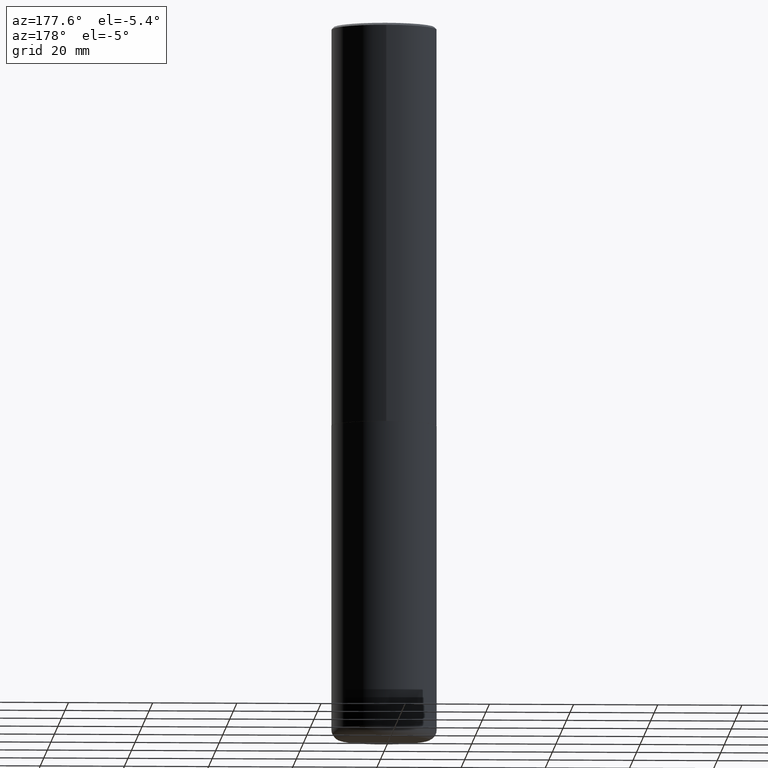
[diagram: clean part render]
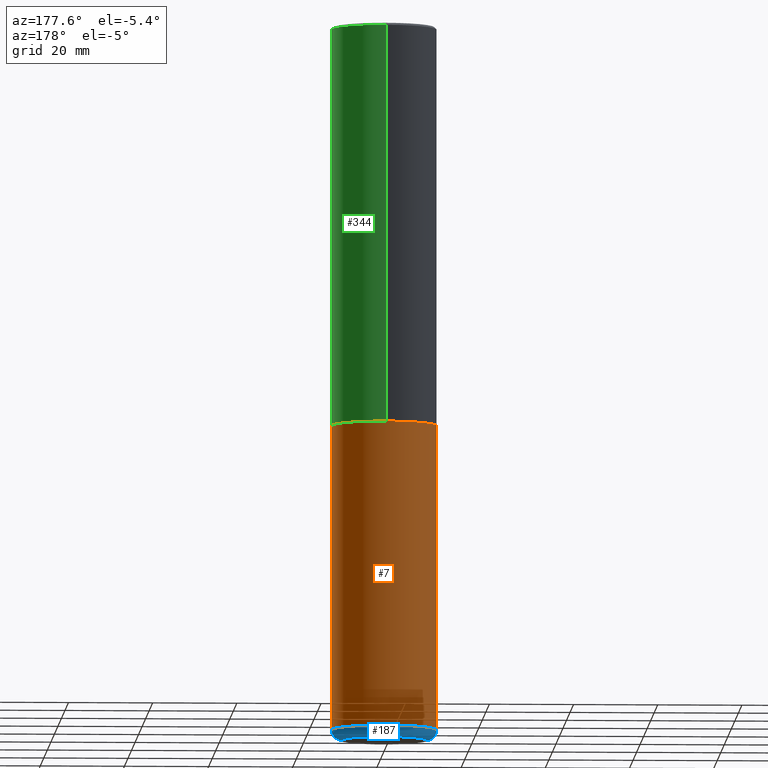
[diagram: same view with three faces highlighted in distinct colors, each labeled with its STEP entity id]
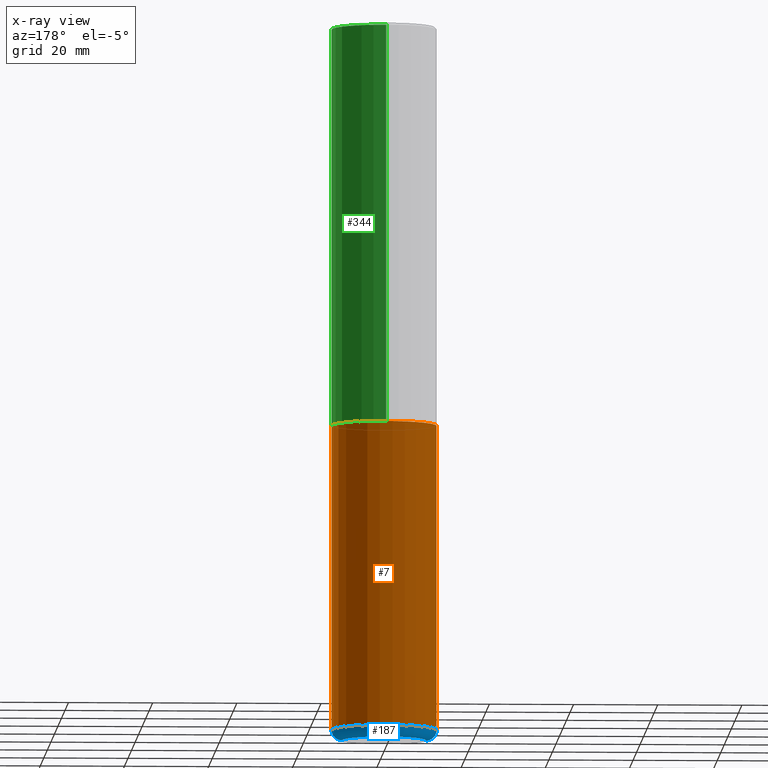
[diagram: x-ray of the same camera — body ghosted, the three highlighted faces saturated]
A machine part, auxiliary view with three faces highlighted in distinct colors.
The next image is the same camera in x-ray (body ghosted, the three faces saturated) — at least one of them is partly hidden behind the body in this view.
Their STEP definitions:

[orange] entity #7 — the highlighted cylindrical surface (partial cylindrical patch) has radius 12.5006 mm, axis along (-0, 0, 1).
#6 = CARTESIAN_POINT ( 'NONE',  ( 9.146297882013029477E-29, -1.305848935540725085E-14, -3.740100000000000424 ) ) ;
#7 = ADVANCED_FACE ( 'NONE', ( #349 ), #293, .T. ) ;
#11 = ORIENTED_EDGE ( 'NONE', *, *, #15, .T. ) ;
#15 = EDGE_CURVE ( 'NONE', #332, #298, #393, .T. ) ;
#29 = AXIS2_PLACEMENT_3D ( 'NONE', #6, #201, #355 ) ;
#40 = AXIS2_PLACEMENT_3D ( 'NONE', #386, #323, #133 ) ;
#42 = EDGE_LOOP ( 'NONE', ( #11, #289, #105, #136 ) ) ;
#47 = EDGE_CURVE ( 'NONE', #134, #275, #218, .T. ) ;
#92 = EDGE_CURVE ( 'NONE', #298, #275, #391, .T. ) ;
#105 = ORIENTED_EDGE ( 'NONE', *, *, #47, .F. ) ;
#115 = CARTESIAN_POINT ( 'NONE',  ( -0.4921500000000002539, -1.952763761495778959E-14, -6.594500000000000028 ) ) ;
#133 = DIRECTION ( 'NONE',  ( 1.000000000000000000, -6.982962677686266711E-15, 0.000000000000000000 ) ) ;
#134 = VERTEX_POINT ( 'NONE', #135 ) ;
#135 = CARTESIAN_POINT ( 'NONE',  ( 0.4921499999999999764, -1.649515443723054663E-14, -3.740100000000000424 ) ) ;
#136 = ORIENTED_EDGE ( 'NONE', *, *, #254, .F. ) ;
#150 = VECTOR ( 'NONE', #297, 39.37007874015748143 ) ;
#188 = DIRECTION ( 'NONE',  ( -2.445468806185136597E-29, 3.491481338843145583E-15, 1.000000000000000000 ) ) ;
#201 = DIRECTION ( 'NONE',  ( -2.445468806185136597E-29, 3.491481338843145583E-15, 1.000000000000000000 ) ) ;
#210 = VECTOR ( 'NONE', #354, 39.37007874015748143 ) ;
#218 = CIRCLE ( 'NONE', #29, 0.4921499999999999764 ) ;
#234 = CARTESIAN_POINT ( 'NONE',  ( -0.4921499999999999764, 3.496936074043332897E-15, -2.420853904668951509E-29 ) ) ;
#236 = CARTESIAN_POINT ( 'NONE',  ( 0.4921499999999999764, -3.436665081823295777E-15, 2.399810400207969603E-29 ) ) ;
#254 = EDGE_CURVE ( 'NONE', #332, #134, #385, .T. ) ;
#275 = VERTEX_POINT ( 'NONE', #284 ) ;
#284 = CARTESIAN_POINT ( 'NONE',  ( -0.4921499999999999764, -1.454459544816085417E-14, -3.740100000000000424 ) ) ;
#289 = ORIENTED_EDGE ( 'NONE', *, *, #92, .T. ) ;
#293 = CYLINDRICAL_SURFACE ( 'NONE', #370, 0.4921499999999999764 ) ;
#297 = DIRECTION ( 'NONE',  ( -2.445468806185136877E-29, 3.491481338843145188E-15, 1.000000000000000000 ) ) ;
#298 = VERTEX_POINT ( 'NONE', #115 ) ;
#321 = CARTESIAN_POINT ( 'NONE',  ( 0.000000000000000000, 0.000000000000000000, 0.000000000000000000 ) ) ;
#323 = DIRECTION ( 'NONE',  ( -2.445468806185136597E-29, 3.491481338843145583E-15, 1.000000000000000000 ) ) ;
#332 = VERTEX_POINT ( 'NONE', #368 ) ;
#349 = FACE_OUTER_BOUND ( 'NONE', #42, .T. ) ;
#354 = DIRECTION ( 'NONE',  ( -2.445468806185136877E-29, 3.491481338843145188E-15, 1.000000000000000000 ) ) ;
#355 = DIRECTION ( 'NONE',  ( 1.000000000000000000, -6.982962677686265922E-15, 0.000000000000000000 ) ) ;
#368 = CARTESIAN_POINT ( 'NONE',  ( 0.4921500000000002539, -2.646123877082442063E-14, -6.594500000000000028 ) ) ;
#370 = AXIS2_PLACEMENT_3D ( 'NONE', #321, #188, #384 ) ;
#384 = DIRECTION ( 'NONE',  ( 1.000000000000000000, -6.982962677686265922E-15, 4.876176775795935793E-29 ) ) ;
#385 = LINE ( 'NONE', #236, #210 ) ;
#386 = CARTESIAN_POINT ( 'NONE',  ( 1.612664404238788252E-28, -2.302457368900112328E-14, -6.594500000000000028 ) ) ;
#391 = LINE ( 'NONE', #234, #150 ) ;
#393 = CIRCLE ( 'NONE', #40, 0.4921499999999999209 ) ;

[blue] entity #187 — the highlighted toroidal blend (fillet) surface has major radius 10.0012 mm and minor (blend) radius 2.4994 mm.
#8 = CARTESIAN_POINT ( 'NONE',  ( 0.3937499999999999889, -2.577411524334009159E-14, -6.594500000000000028 ) ) ;
#13 = AXIS2_PLACEMENT_3D ( 'NONE', #417, #124, #258 ) ;
#15 = EDGE_CURVE ( 'NONE', #332, #298, #393, .T. ) ;
#26 = CARTESIAN_POINT ( 'NONE',  ( -0.3937499999999999889, -2.004900552282284682E-14, -6.692900000000000738 ) ) ;
#35 = DIRECTION ( 'NONE',  ( -1.000000000000000000, 7.105427357601011325E-15, 0.000000000000000000 ) ) ;
#40 = AXIS2_PLACEMENT_3D ( 'NONE', #386, #323, #133 ) ;
#48 = ORIENTED_EDGE ( 'NONE', *, *, #242, .T. ) ;
#52 = DIRECTION ( 'NONE',  ( 1.000000000000000000, -6.982962677686266711E-15, 0.000000000000000000 ) ) ;
#70 = DIRECTION ( 'NONE',  ( -6.982962677686266711E-15, -1.000000000000000000, 3.491481338843145583E-15 ) ) ;
#81 = TOROIDAL_SURFACE ( 'NONE', #13, 0.3937499999999999889, 0.09840000000000061198 ) ;
#85 = CARTESIAN_POINT ( 'NONE',  ( 1.636727817291650190E-28, -2.336813545274329412E-14, -6.692900000000000738 ) ) ;
#108 = CARTESIAN_POINT ( 'NONE',  ( 0.3937499999999999889, -2.611767700708225927E-14, -6.692900000000000738 ) ) ;
#115 = CARTESIAN_POINT ( 'NONE',  ( -0.4921500000000002539, -1.952763761495778959E-14, -6.594500000000000028 ) ) ;
#119 = EDGE_CURVE ( 'NONE', #300, #332, #277, .T. ) ;
#124 = DIRECTION ( 'NONE',  ( -2.445468806185136597E-29, 3.491481338843145583E-15, 1.000000000000000000 ) ) ;
#132 = CARTESIAN_POINT ( 'NONE',  ( -0.3937499999999999889, -2.022681166694573006E-14, -6.594500000000000028 ) ) ;
#133 = DIRECTION ( 'NONE',  ( 1.000000000000000000, -6.982962677686266711E-15, 0.000000000000000000 ) ) ;
#169 = ORIENTED_EDGE ( 'NONE', *, *, #15, .F. ) ;
#179 = AXIS2_PLACEMENT_3D ( 'NONE', #85, #213, #52 ) ;
#187 = ADVANCED_FACE ( 'NONE', ( #346 ), #81, .T. ) ;
#213 = DIRECTION ( 'NONE',  ( -2.445468806185136597E-29, 3.491481338843145583E-15, 1.000000000000000000 ) ) ;
#242 = EDGE_CURVE ( 'NONE', #356, #298, #381, .T. ) ;
#258 = DIRECTION ( 'NONE',  ( 1.000000000000000000, -6.982962677686264344E-15, 4.883557194083112340E-29 ) ) ;
#263 = DIRECTION ( 'NONE',  ( 7.105427357601001859E-15, 1.000000000000000000, -3.491481338843145583E-15 ) ) ;
#271 = ORIENTED_EDGE ( 'NONE', *, *, #304, .T. ) ;
#277 = CIRCLE ( 'NONE', #404, 0.09840000000000065361 ) ;
#288 = DIRECTION ( 'NONE',  ( 1.000000000000000000, -6.982962677686254878E-15, 0.000000000000000000 ) ) ;
#294 = CIRCLE ( 'NONE', #179, 0.3937499999999999889 ) ;
#298 = VERTEX_POINT ( 'NONE', #115 ) ;
#300 = VERTEX_POINT ( 'NONE', #108 ) ;
#304 = EDGE_CURVE ( 'NONE', #300, #356, #294, .T. ) ;
#323 = DIRECTION ( 'NONE',  ( -2.445468806185136597E-29, 3.491481338843145583E-15, 1.000000000000000000 ) ) ;
#332 = VERTEX_POINT ( 'NONE', #368 ) ;
#346 = FACE_OUTER_BOUND ( 'NONE', #365, .T. ) ;
#356 = VERTEX_POINT ( 'NONE', #26 ) ;
#360 = ORIENTED_EDGE ( 'NONE', *, *, #119, .F. ) ;
#365 = EDGE_LOOP ( 'NONE', ( #271, #48, #169, #360 ) ) ;
#368 = CARTESIAN_POINT ( 'NONE',  ( 0.4921500000000002539, -2.646123877082442063E-14, -6.594500000000000028 ) ) ;
#375 = AXIS2_PLACEMENT_3D ( 'NONE', #132, #263, #35 ) ;
#381 = CIRCLE ( 'NONE', #375, 0.09840000000000065361 ) ;
#386 = CARTESIAN_POINT ( 'NONE',  ( 1.612664404238788252E-28, -2.302457368900112328E-14, -6.594500000000000028 ) ) ;
#393 = CIRCLE ( 'NONE', #40, 0.4921499999999999209 ) ;
#404 = AXIS2_PLACEMENT_3D ( 'NONE', #8, #70, #288 ) ;
#417 = CARTESIAN_POINT ( 'NONE',  ( 1.612664404238788252E-28, -2.302457368900112328E-14, -6.594500000000000028 ) ) ;

[green] entity #344 — the highlighted cylindrical surface (partial cylindrical patch) has radius 12.5006 mm, axis along (-0, 0, 1).
#9 = EDGE_LOOP ( 'NONE', ( #46, #361, #395, #392 ) ) ;
#20 = CIRCLE ( 'NONE', #219, 0.4921500000000003650 ) ;
#33 = CARTESIAN_POINT ( 'NONE',  ( -3.436665081823207030E-15, -0.4921500000000134101, -3.739099999999998758 ) ) ;
#46 = ORIENTED_EDGE ( 'NONE', *, *, #340, .T. ) ;
#49 = VECTOR ( 'NONE', #322, 39.37007874015748143 ) ;
#64 = CARTESIAN_POINT ( 'NONE',  ( 0.000000000000000000, 0.000000000000000000, 0.000000000000000000 ) ) ;
#71 = LINE ( 'NONE', #194, #49 ) ;
#79 = VERTEX_POINT ( 'NONE', #290 ) ;
#83 = AXIS2_PLACEMENT_3D ( 'NONE', #64, #350, #184 ) ;
#128 = CIRCLE ( 'NONE', #252, 0.4921499999999999209 ) ;
#139 = VERTEX_POINT ( 'NONE', #33 ) ;
#142 = DIRECTION ( 'NONE',  ( -2.445976594451651952E-29, 3.490754157143982552E-15, 1.000000000000000000 ) ) ;
#177 = CARTESIAN_POINT ( 'NONE',  ( 3.496936074043333291E-15, 0.4921500000000000874, -1.717974658438411319E-15 ) ) ;
#178 = CARTESIAN_POINT ( 'NONE',  ( 4.891953188903329688E-31, -6.981508314288001687E-17, -0.02000000000000010797 ) ) ;
#184 = DIRECTION ( 'NONE',  ( -6.982962677686265922E-15, -1.000000000000000000, 3.490754157143982552E-15 ) ) ;
#194 = CARTESIAN_POINT ( 'NONE',  ( -3.436665081823296565E-15, -0.4921500000000000874, 1.717974658438411319E-15 ) ) ;
#199 = EDGE_CURVE ( 'NONE', #301, #79, #128, .T. ) ;
#219 = AXIS2_PLACEMENT_3D ( 'NONE', #291, #233, #224 ) ;
#224 = DIRECTION ( 'NONE',  ( -6.982962677686265922E-15, -1.000000000000000000, 3.330506545156063496E-15 ) ) ;
#225 = CYLINDRICAL_SURFACE ( 'NONE', #83, 0.4921500000000000874 ) ;
#228 = EDGE_CURVE ( 'NONE', #139, #301, #71, .T. ) ;
#233 = DIRECTION ( 'NONE',  ( -2.445976594451651952E-29, 3.490754157143982552E-15, 1.000000000000000000 ) ) ;
#248 = LINE ( 'NONE', #177, #283 ) ;
#252 = AXIS2_PLACEMENT_3D ( 'NONE', #178, #142, #418 ) ;
#283 = VECTOR ( 'NONE', #305, 39.37007874015748143 ) ;
#290 = CARTESIAN_POINT ( 'NONE',  ( 3.436665081823295777E-15, 0.4921499999999998098, -0.02000000000000182188 ) ) ;
#291 = CARTESIAN_POINT ( 'NONE',  ( 9.145751084314172604E-29, -1.305227886897706845E-14, -3.739100000000000534 ) ) ;
#299 = VERTEX_POINT ( 'NONE', #401 ) ;
#301 = VERTEX_POINT ( 'NONE', #406 ) ;
#305 = DIRECTION ( 'NONE',  ( -2.445976594451651672E-29, 3.490754157143982552E-15, 1.000000000000000000 ) ) ;
#309 = EDGE_CURVE ( 'NONE', #299, #79, #248, .T. ) ;
#318 = FACE_OUTER_BOUND ( 'NONE', #9, .T. ) ;
#322 = DIRECTION ( 'NONE',  ( -2.445976594451651672E-29, 3.490754157143982552E-15, 1.000000000000000000 ) ) ;
#340 = EDGE_CURVE ( 'NONE', #139, #299, #20, .T. ) ;
#344 = ADVANCED_FACE ( 'NONE', ( #318 ), #225, .T. ) ;
#350 = DIRECTION ( 'NONE',  ( -2.445976594451651952E-29, 3.490754157143982552E-15, 1.000000000000000000 ) ) ;
#361 = ORIENTED_EDGE ( 'NONE', *, *, #309, .T. ) ;
#392 = ORIENTED_EDGE ( 'NONE', *, *, #228, .F. ) ;
#395 = ORIENTED_EDGE ( 'NONE', *, *, #199, .F. ) ;
#401 = CARTESIAN_POINT ( 'NONE',  ( 3.496936074043380229E-15, 0.4921499999999873198, -3.739100000000002311 ) ) ;
#406 = CARTESIAN_POINT ( 'NONE',  ( -3.376394089603257868E-15, -0.4921499999999999764, -0.01999999999999839059 ) ) ;
#418 = DIRECTION ( 'NONE',  ( -6.982962677686265922E-15, -1.000000000000000000, 3.486624039460257331E-15 ) ) ;